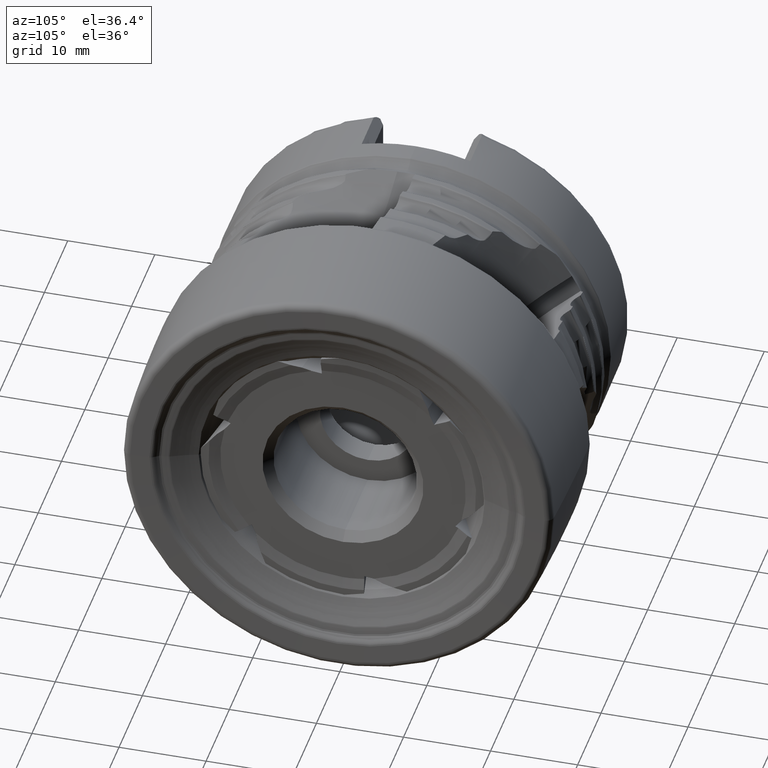
[diagram: clean part render]
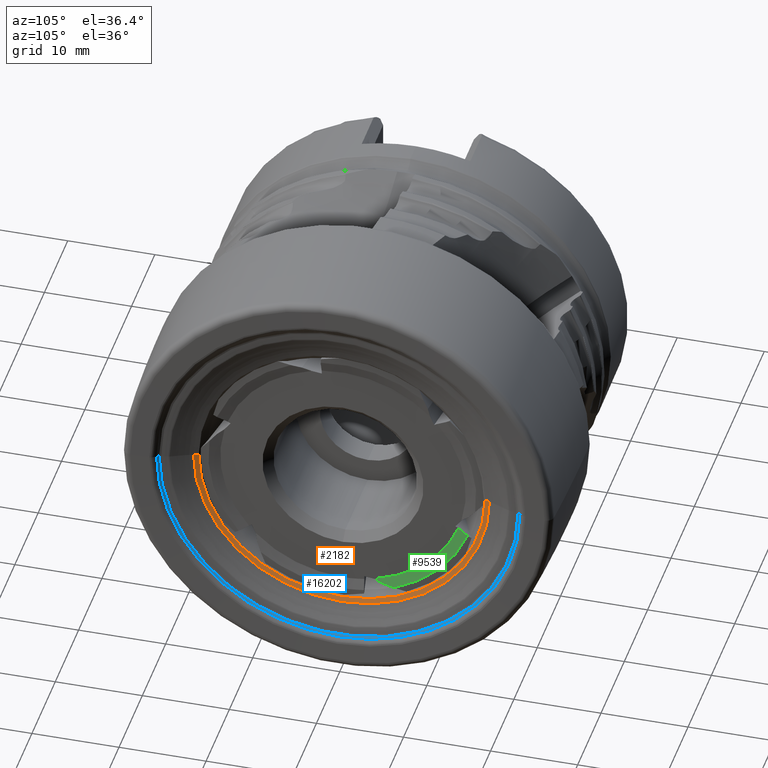
[diagram: same view with three faces highlighted in distinct colors, each labeled with its STEP entity id]
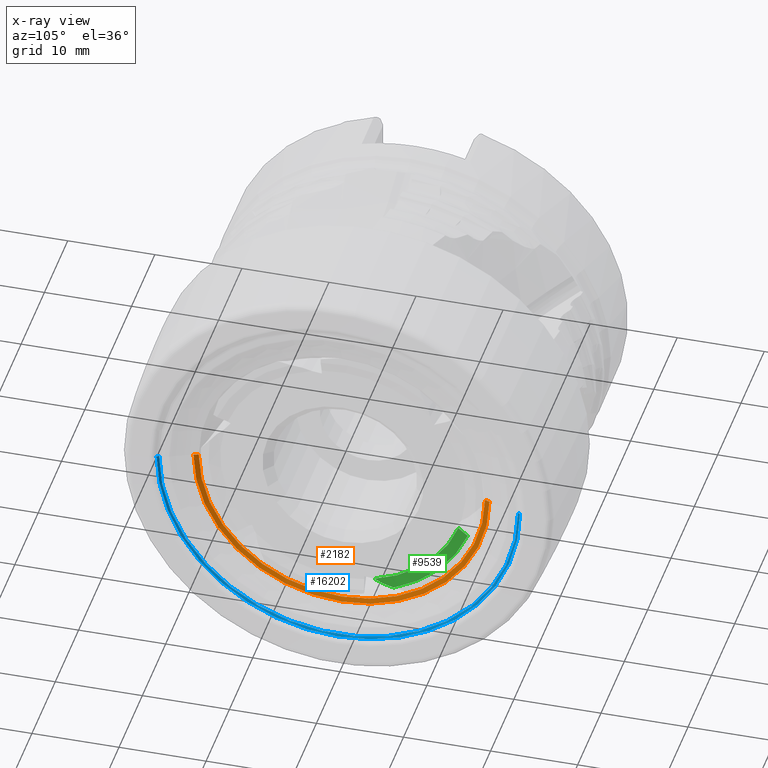
[diagram: x-ray of the same camera — body ghosted, the three highlighted faces saturated]
A machine part, auxiliary view with three faces highlighted in distinct colors.
The next image is the same camera in x-ray (body ghosted, the three faces saturated) — at least one of them is partly hidden behind the body in this view.
Their STEP definitions:

[orange] entity #2182 — the highlighted conical surface has half-angle 71.547 deg.
#684 = VERTEX_POINT ( 'NONE', #15366 ) ;
#1055 = DIRECTION ( 'NONE',  ( 1.000000000000000000, 1.211686136220874939E-16, -0.0000000000000000000 ) ) ;
#1434 = LINE ( 'NONE', #1914, #7047 ) ;
#1914 = CARTESIAN_POINT ( 'NONE',  ( -0.9256034217041094747, -16.44061915771816729, 2.013395162750020808E-15 ) ) ;
#2182 = ADVANCED_FACE ( 'NONE', ( #17753 ), #12967, .F. ) ;
#2581 = ORIENTED_EDGE ( 'NONE', *, *, #6070, .F. ) ;
#2630 = VERTEX_POINT ( 'NONE', #9412 ) ;
#2788 = ORIENTED_EDGE ( 'NONE', *, *, #4453, .T. ) ;
#2968 = CARTESIAN_POINT ( 'NONE',  ( -0.9256034217041113621, -1.386815341980305507E-15, 0.0000000000000000000 ) ) ;
#3413 = DIRECTION ( 'NONE',  ( -1.211994478783202643E-16, 1.000000000000000000, 0.0000000000000000000 ) ) ;
#4453 = EDGE_CURVE ( 'NONE', #18203, #4871, #1434, .T. ) ;
#4564 = CARTESIAN_POINT ( 'NONE',  ( -0.9256034217041094747, -16.44061915771816729, 2.047441995839015135E-15 ) ) ;
#4688 = DIRECTION ( 'NONE',  ( 0.3165250896579425155, -0.9485841383962897444, 1.161680528808966099E-16 ) ) ;
#4871 = VERTEX_POINT ( 'NONE', #17243 ) ;
#5559 = VECTOR ( 'NONE', #10252, 1000.000000000000000 ) ;
#5743 = ORIENTED_EDGE ( 'NONE', *, *, #17735, .F. ) ;
#6070 = EDGE_CURVE ( 'NONE', #18203, #684, #15482, .T. ) ;
#6556 = DIRECTION ( 'NONE',  ( -1.187037964782325152E-16, 1.000000000000000000, 0.0000000000000000000 ) ) ;
#6949 = DIRECTION ( 'NONE',  ( 1.000000000000000000, 1.211686136220874939E-16, -0.0000000000000000000 ) ) ;
#7047 = VECTOR ( 'NONE', #4688, 1000.000000000000114 ) ;
#7569 = EDGE_LOOP ( 'NONE', ( #2581, #2788, #16025, #5743 ) ) ;
#8239 = AXIS2_PLACEMENT_3D ( 'NONE', #2968, #6949, #8782 ) ;
#8782 = DIRECTION ( 'NONE',  ( -1.187037964782325152E-16, 1.000000000000000000, 0.0000000000000000000 ) ) ;
#9412 = CARTESIAN_POINT ( 'NONE',  ( -0.7400674394988877580, 16.99664613811282265, 0.0000000000000000000 ) ) ;
#9420 = CARTESIAN_POINT ( 'NONE',  ( -0.9256034217041113621, -1.386815341980305507E-15, 0.0000000000000000000 ) ) ;
#10252 = DIRECTION ( 'NONE',  ( 0.3165250896579423490, 0.9485841383962898554, 0.0000000000000000000 ) ) ;
#10457 = AXIS2_PLACEMENT_3D ( 'NONE', #14937, #10628, #3413 ) ;
#10628 = DIRECTION ( 'NONE',  ( 1.000000000000000000, 1.211686136220874939E-16, -0.0000000000000000000 ) ) ;
#10676 = EDGE_CURVE ( 'NONE', #4871, #2630, #12277, .T. ) ;
#12277 = CIRCLE ( 'NONE', #10457, 16.99664613811282265 ) ;
#12967 = CONICAL_SURFACE ( 'NONE', #13241, 16.44061915771816729, 1.248732349384757301 ) ;
#13241 = AXIS2_PLACEMENT_3D ( 'NONE', #9420, #1055, #6556 ) ;
#14937 = CARTESIAN_POINT ( 'NONE',  ( -0.7400674394988857596, -1.364334204239486079E-15, 0.0000000000000000000 ) ) ;
#15188 = LINE ( 'NONE', #17546, #5559 ) ;
#15366 = CARTESIAN_POINT ( 'NONE',  ( -0.9256034217041133605, 16.44061915771816729, 0.0000000000000000000 ) ) ;
#15482 = CIRCLE ( 'NONE', #8239, 16.44061915771816729 ) ;
#16025 = ORIENTED_EDGE ( 'NONE', *, *, #10676, .T. ) ;
#17243 = CARTESIAN_POINT ( 'NONE',  ( -0.7400674394988836502, -16.99664613811282265, 2.109791720098440768E-15 ) ) ;
#17546 = CARTESIAN_POINT ( 'NONE',  ( -0.9256034217041133605, 16.44061915771816729, 0.0000000000000000000 ) ) ;
#17735 = EDGE_CURVE ( 'NONE', #684, #2630, #15188, .T. ) ;
#17753 = FACE_OUTER_BOUND ( 'NONE', #7569, .T. ) ;
#18203 = VERTEX_POINT ( 'NONE', #4564 ) ;

[blue] entity #16202 — the highlighted conical surface has half-angle 58.036 deg.
#1303 = DIRECTION ( 'NONE',  ( 0.5293803658903194487, 0.8483845992295189209, 0.0000000000000000000 ) ) ;
#1330 = CARTESIAN_POINT ( 'NONE',  ( 0.4734255814481426183, -1.217296937251255826E-15, 0.0000000000000000000 ) ) ;
#2260 = CONICAL_SURFACE ( 'NONE', #9722, 20.61599731194133511, 1.012926297374064033 ) ;
#2466 = DIRECTION ( 'NONE',  ( -1.209577668732166123E-16, 1.000000000000000000, 0.0000000000000000000 ) ) ;
#2479 = ORIENTED_EDGE ( 'NONE', *, *, #12933, .F. ) ;
#3965 = CARTESIAN_POINT ( 'NONE',  ( 0.4734255814481451163, -20.61599731194133511, 2.524731511929939558E-15 ) ) ;
#4382 = LINE ( 'NONE', #6936, #13118 ) ;
#5203 = CARTESIAN_POINT ( 'NONE',  ( 0.6305292532978578057, -1.198260903138286395E-15, 0.0000000000000000000 ) ) ;
#5976 = CARTESIAN_POINT ( 'NONE',  ( 0.4734255814481401758, 20.61599731194133511, 0.0000000000000000000 ) ) ;
#6936 = CARTESIAN_POINT ( 'NONE',  ( 0.4734255814481401758, 20.61599731194133511, 0.0000000000000000000 ) ) ;
#8029 = DIRECTION ( 'NONE',  ( 1.000000000000000000, 1.211686136220874939E-16, -0.0000000000000000000 ) ) ;
#8327 = VERTEX_POINT ( 'NONE', #5976 ) ;
#9182 = FACE_OUTER_BOUND ( 'NONE', #11119, .T. ) ;
#9722 = AXIS2_PLACEMENT_3D ( 'NONE', #16848, #13804, #2466 ) ;
#9832 = EDGE_CURVE ( 'NONE', #14941, #16889, #18468, .T. ) ;
#11119 = EDGE_LOOP ( 'NONE', ( #2479, #15013, #18251, #14325 ) ) ;
#11355 = DIRECTION ( 'NONE',  ( -1.209577668732166123E-16, 1.000000000000000000, 0.0000000000000000000 ) ) ;
#11833 = AXIS2_PLACEMENT_3D ( 'NONE', #1330, #17308, #11355 ) ;
#11872 = CARTESIAN_POINT ( 'NONE',  ( 0.4734255814481451163, -20.61599731194133511, 2.540148237368190011E-15 ) ) ;
#12099 = EDGE_CURVE ( 'NONE', #8327, #16754, #4382, .T. ) ;
#12281 = CIRCLE ( 'NONE', #14947, 20.86777154511590027 ) ;
#12642 = CARTESIAN_POINT ( 'NONE',  ( 0.6305292532978603592, -20.86777154511590027, 2.569300585748206221E-15 ) ) ;
#12860 = CIRCLE ( 'NONE', #11833, 20.61599731194133511 ) ;
#12933 = EDGE_CURVE ( 'NONE', #14941, #8327, #12860, .T. ) ;
#13118 = VECTOR ( 'NONE', #1303, 1000.000000000000114 ) ;
#13804 = DIRECTION ( 'NONE',  ( 1.000000000000000000, 1.211686136220874939E-16, -0.0000000000000000000 ) ) ;
#14000 = DIRECTION ( 'NONE',  ( 0.5293803658903196707, -0.8483845992295188099, 1.038971483892340438E-16 ) ) ;
#14325 = ORIENTED_EDGE ( 'NONE', *, *, #12099, .F. ) ;
#14840 = VECTOR ( 'NONE', #14000, 1000.000000000000000 ) ;
#14941 = VERTEX_POINT ( 'NONE', #11872 ) ;
#14947 = AXIS2_PLACEMENT_3D ( 'NONE', #5203, #8029, #16441 ) ;
#15013 = ORIENTED_EDGE ( 'NONE', *, *, #9832, .T. ) ;
#15364 = CARTESIAN_POINT ( 'NONE',  ( 0.6305292532978553632, 20.86777154511590027, 0.0000000000000000000 ) ) ;
#16202 = ADVANCED_FACE ( 'NONE', ( #9182 ), #2260, .F. ) ;
#16441 = DIRECTION ( 'NONE',  ( -1.194983849293818020E-16, 1.000000000000000000, 0.0000000000000000000 ) ) ;
#16754 = VERTEX_POINT ( 'NONE', #15364 ) ;
#16848 = CARTESIAN_POINT ( 'NONE',  ( 0.4734255814481426183, -1.217296937251255826E-15, 0.0000000000000000000 ) ) ;
#16889 = VERTEX_POINT ( 'NONE', #12642 ) ;
#17308 = DIRECTION ( 'NONE',  ( 1.000000000000000000, 1.211686136220874939E-16, -0.0000000000000000000 ) ) ;
#17492 = EDGE_CURVE ( 'NONE', #16889, #16754, #12281, .T. ) ;
#18251 = ORIENTED_EDGE ( 'NONE', *, *, #17492, .T. ) ;
#18468 = LINE ( 'NONE', #3965, #14840 ) ;

[green] entity #9539 — the highlighted conical surface has half-angle 76.504 deg.
#273 = CONICAL_SURFACE ( 'NONE', #7886, 15.39127611995709444, 1.335251346074030732 ) ;
#571 = CARTESIAN_POINT ( 'NONE',  ( -1.241992456242396292, 4.670046097864183565, -13.99999999999999645 ) ) ;
#847 = CARTESIAN_POINT ( 'NONE',  ( -1.241992456242396292, 4.670046097864183565, -13.99999999999999645 ) ) ;
#2209 = CARTESIAN_POINT ( 'NONE',  ( -1.090093731210293848, 14.39883645780209243, -5.437360505082480699 ) ) ;
#2253 = VERTEX_POINT ( 'NONE', #571 ) ;
#2303 = ORIENTED_EDGE ( 'NONE', *, *, #3348, .T. ) ;
#2350 = CARTESIAN_POINT ( 'NONE',  ( -1.143720472186460446, 5.495452514464226113, -14.14171343038442785 ) ) ;
#2406 = ORIENTED_EDGE ( 'NONE', *, *, #13163, .T. ) ;
#2617 = EDGE_LOOP ( 'NONE', ( #13394, #2406, #16602, #8513, #2303 ) ) ;
#2952 = VERTEX_POINT ( 'NONE', #16386 ) ;
#3289 = CARTESIAN_POINT ( 'NONE',  ( -1.296780802641796848, 13.63239446710715441, -5.028396726123339988 ) ) ;
#3348 = EDGE_CURVE ( 'NONE', #2253, #2952, #9587, .T. ) ;
#3682 = CARTESIAN_POINT ( 'NONE',  ( -1.400000000000001021, 3.601134703347080190, -13.63238162788693408 ) ) ;
#4644 = EDGE_CURVE ( 'NONE', #2952, #10443, #10375, .T. ) ;
#4840 = CARTESIAN_POINT ( 'NONE',  ( -1.090093731210293848, 0.0000000000000000000, 0.0000000000000000000 ) ) ;
#5157 = DIRECTION ( 'NONE',  ( 1.000000000000000000, -0.0000000000000000000, -0.0000000000000000000 ) ) ;
#6599 = CARTESIAN_POINT ( 'NONE',  ( -1.090093731210293848, 0.0000000000000000000, 0.0000000000000000000 ) ) ;
#7563 = CARTESIAN_POINT ( 'NONE',  ( -1.090093731210293848, 14.39883645780209243, -5.437360505082480699 ) ) ;
#7724 = CARTESIAN_POINT ( 'NONE',  ( -1.193471718351909683, 14.01562029114729668, -5.232886994316112705 ) ) ;
#7886 = AXIS2_PLACEMENT_3D ( 'NONE', #4840, #13375, #9128 ) ;
#7932 = DIRECTION ( 'NONE',  ( 0.0000000000000000000, 0.0000000000000000000, -1.000000000000000000 ) ) ;
#8230 = CARTESIAN_POINT ( 'NONE',  ( -1.304360188998368031, 4.328000198387681685, -13.84015567819468373 ) ) ;
#8466 = CARTESIAN_POINT ( 'NONE',  ( -1.241992456242396292, 4.670046097864183565, -13.99999999999999645 ) ) ;
#8513 = ORIENTED_EDGE ( 'NONE', *, *, #12125, .T. ) ;
#9128 = DIRECTION ( 'NONE',  ( 0.0000000000000000000, 0.0000000000000000000, -1.000000000000000000 ) ) ;
#9539 = ADVANCED_FACE ( 'NONE', ( #13732 ), #273, .F. ) ;
#9584 = CARTESIAN_POINT ( 'NONE',  ( -1.090093731210293848, 5.907622852376257505, -14.21236689770016248 ) ) ;
#9587 = B_SPLINE_CURVE_WITH_KNOTS ( 'NONE', 3,
 ( #847, #10831, #2350, #9584 ),
 .UNSPECIFIED., .F., .F.,
 ( 4, 4 ),
 ( 1.188817348310090492E-06, 0.001266008624754968136 ),
 .UNSPECIFIED. ) ;
#9800 = CARTESIAN_POINT ( 'NONE',  ( -1.399999999999999689, 13.24915609135979899, -4.823884624116073994 ) ) ;
#9883 = CARTESIAN_POINT ( 'NONE',  ( -1.400000000000001021, 3.601134703347080190, -13.63238162788693408 ) ) ;
#10375 = CIRCLE ( 'NONE', #13047, 15.39127611995709444 ) ;
#10442 = EDGE_CURVE ( 'NONE', #15712, #17997, #13416, .T. ) ;
#10443 = VERTEX_POINT ( 'NONE', #2209 ) ;
#10831 = CARTESIAN_POINT ( 'NONE',  ( -1.194489409978651606, 5.082920173107895678, -14.07092662288092555 ) ) ;
#12083 = CARTESIAN_POINT ( 'NONE',  ( -1.399999999999999689, 13.24915609135979899, -4.823884624116073994 ) ) ;
#12125 = EDGE_CURVE ( 'NONE', #15712, #2253, #17012, .T. ) ;
#13047 = AXIS2_PLACEMENT_3D ( 'NONE', #6599, #5157, #7932 ) ;
#13163 = EDGE_CURVE ( 'NONE', #10443, #17997, #17637, .T. ) ;
#13375 = DIRECTION ( 'NONE',  ( 1.000000000000000000, -0.0000000000000000000, -0.0000000000000000000 ) ) ;
#13394 = ORIENTED_EDGE ( 'NONE', *, *, #4644, .T. ) ;
#13416 = CIRCLE ( 'NONE', #17737, 14.10000000000000142 ) ;
#13615 = CARTESIAN_POINT ( 'NONE',  ( -1.399999999999999689, 0.0000000000000000000, 0.0000000000000000000 ) ) ;
#13732 = FACE_OUTER_BOUND ( 'NONE', #2617, .T. ) ;
#14999 = DIRECTION ( 'NONE',  ( 0.0000000000000000000, 0.0000000000000000000, -1.000000000000000000 ) ) ;
#15712 = VERTEX_POINT ( 'NONE', #3682 ) ;
#16386 = CARTESIAN_POINT ( 'NONE',  ( -1.090093731210293848, 5.907622852376257505, -14.21236689770016248 ) ) ;
#16602 = ORIENTED_EDGE ( 'NONE', *, *, #10442, .F. ) ;
#17012 = B_SPLINE_CURVE_WITH_KNOTS ( 'NONE', 3,
 ( #9883, #17161, #8230, #8466 ),
 .UNSPECIFIED., .F., .F.,
 ( 4, 4 ),
 ( 1.794835597996819090E-06, 0.001143145438892080807 ),
 .UNSPECIFIED. ) ;
#17161 = CARTESIAN_POINT ( 'NONE',  ( -1.357588909863113757, 3.971918862986168364, -13.71720964051011471 ) ) ;
#17637 = B_SPLINE_CURVE_WITH_KNOTS ( 'NONE', 3,
 ( #7563, #7724, #3289, #12083 ),
 .UNSPECIFIED., .F., .F.,
 ( 4, 4 ),
 ( 8.637956213071265129E-07, 0.001340326186637029373 ),
 .UNSPECIFIED. ) ;
#17737 = AXIS2_PLACEMENT_3D ( 'NONE', #13615, #17936, #14999 ) ;
#17936 = DIRECTION ( 'NONE',  ( 1.000000000000000000, -0.0000000000000000000, -0.0000000000000000000 ) ) ;
#17997 = VERTEX_POINT ( 'NONE', #9800 ) ;